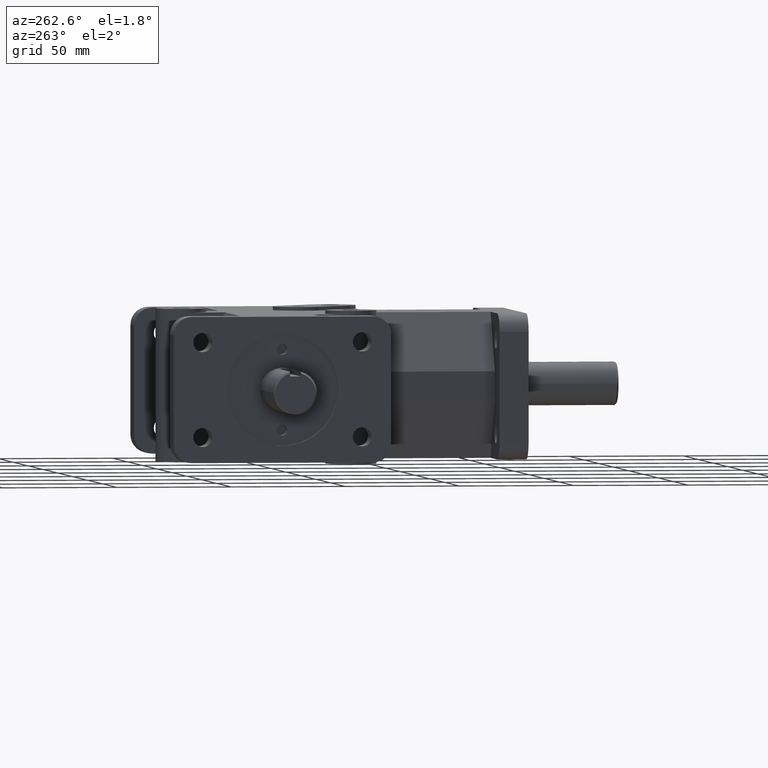
[diagram: clean part render]
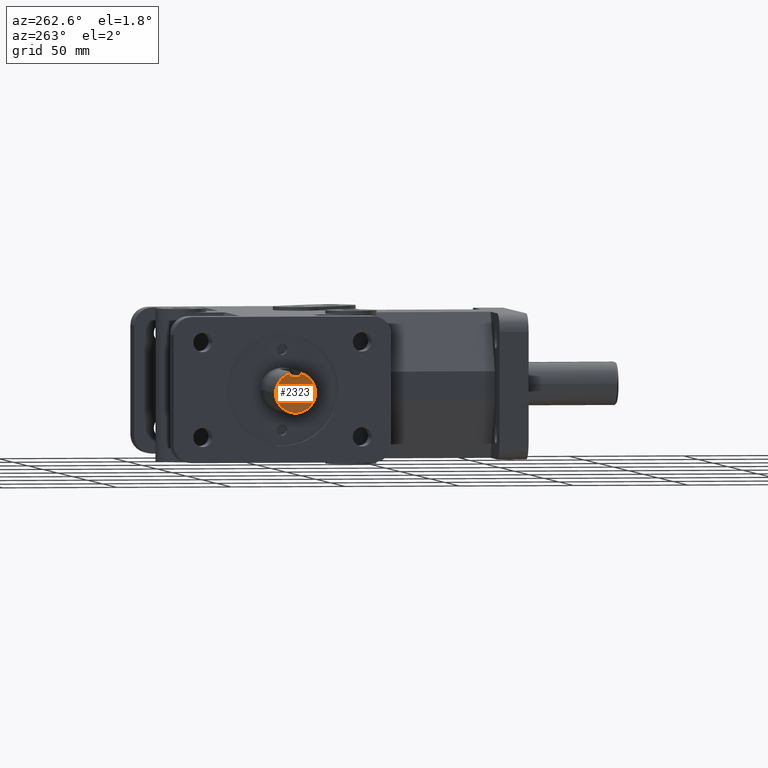
[diagram: same view with one face highlighted and labeled with its STEP entity id]
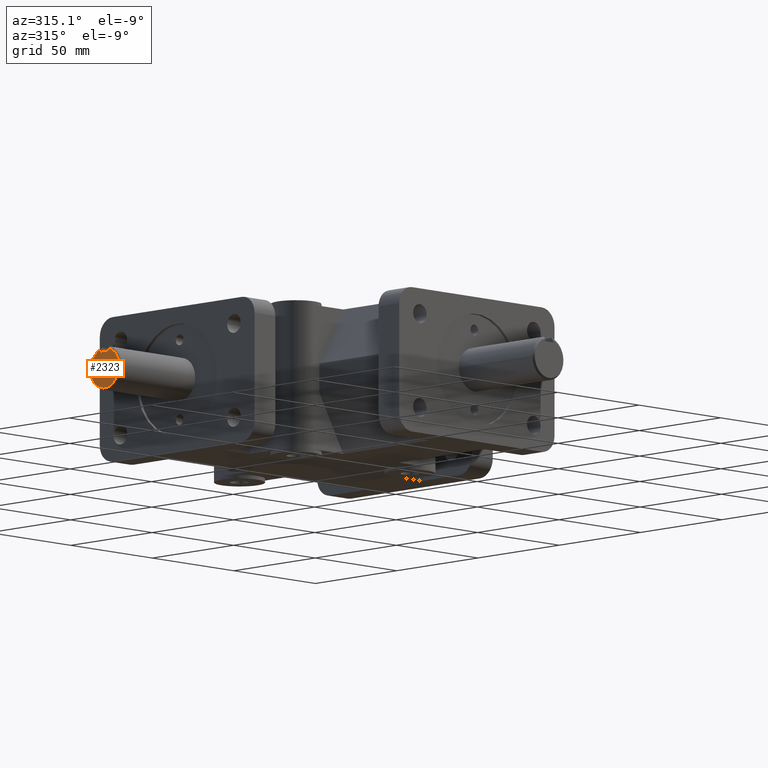
[diagram: same view with one face highlighted and labeled with its STEP entity id]
A machine part, auxiliary view. The second image highlights one B-rep face of the part: STEP entity #2323.
A second angle (auxiliary view) of the same face is appended — the face is thin or edge-on in the first view.
In plain terms, the highlighted planar face has unit normal (1, 0, 0).
Its self-contained STEP definition (entity closure, byte-faithful):
#155=LINE('',#3779,#377);
#160=LINE('',#3788,#382);
#162=LINE('',#3791,#384);
#377=VECTOR('',#3027,1.);
#382=VECTOR('',#3034,1.);
#384=VECTOR('',#3038,1.);
#611=FACE_OUTER_BOUND('',#761,.T.);
#761=EDGE_LOOP('',(#1846,#1847,#1848,#1849));
#930=CIRCLE('',#2532,0.345);
#1122=VERTEX_POINT('',#3756);
#1126=VERTEX_POINT('',#3765);
#1129=VERTEX_POINT('',#3778);
#1132=VERTEX_POINT('',#3786);
#1390=EDGE_CURVE('',#1126,#1122,#930,.T.);
#1395=EDGE_CURVE('',#1129,#1122,#155,.T.);
#1400=EDGE_CURVE('',#1126,#1132,#160,.T.);
#1402=EDGE_CURVE('',#1132,#1129,#162,.T.);
#1846=ORIENTED_EDGE('',*,*,#1390,.F.);
#1847=ORIENTED_EDGE('',*,*,#1400,.T.);
#1848=ORIENTED_EDGE('',*,*,#1402,.T.);
#1849=ORIENTED_EDGE('',*,*,#1395,.T.);
#2219=PLANE('',#2539);
#2323=ADVANCED_FACE('',(#611),#2219,.F.);
#2532=AXIS2_PLACEMENT_3D('',#3769,#3016,#3017);
#2539=AXIS2_PLACEMENT_3D('',#3793,#3041,#3042);
#3016=DIRECTION('center_axis',(1.,6.12303176911189E-17,0.));
#3017=DIRECTION('ref_axis',(6.12303176911189E-17,-1.,0.));
#3027=DIRECTION('',(0.,0.,1.));
#3034=DIRECTION('',(0.,0.,-1.));
#3038=DIRECTION('',(-6.12303176911189E-17,1.,0.));
#3041=DIRECTION('center_axis',(1.,6.12303176911189E-17,0.));
#3042=DIRECTION('ref_axis',(6.12303176911189E-17,-1.,0.));
#3756=CARTESIAN_POINT('',(-4.625,4.46875,0.332017977675908));
#3765=CARTESIAN_POINT('',(-4.625,4.28125,0.332017977675908));
#3769=CARTESIAN_POINT('Origin',(-4.625,4.375,0.));
#3778=CARTESIAN_POINT('',(-4.625,4.46875,0.28125));
#3779=CARTESIAN_POINT('',(-4.625,4.46875,0.1875));
#3786=CARTESIAN_POINT('',(-4.625,4.28125,0.28125));
#3788=CARTESIAN_POINT('',(-4.625,4.28125,0.140625));
#3791=CARTESIAN_POINT('',(-4.625,4.40482954545455,0.28125));
#3793=CARTESIAN_POINT('Origin',(-4.625,4.34090909090909,-8.34958877606166E-18));